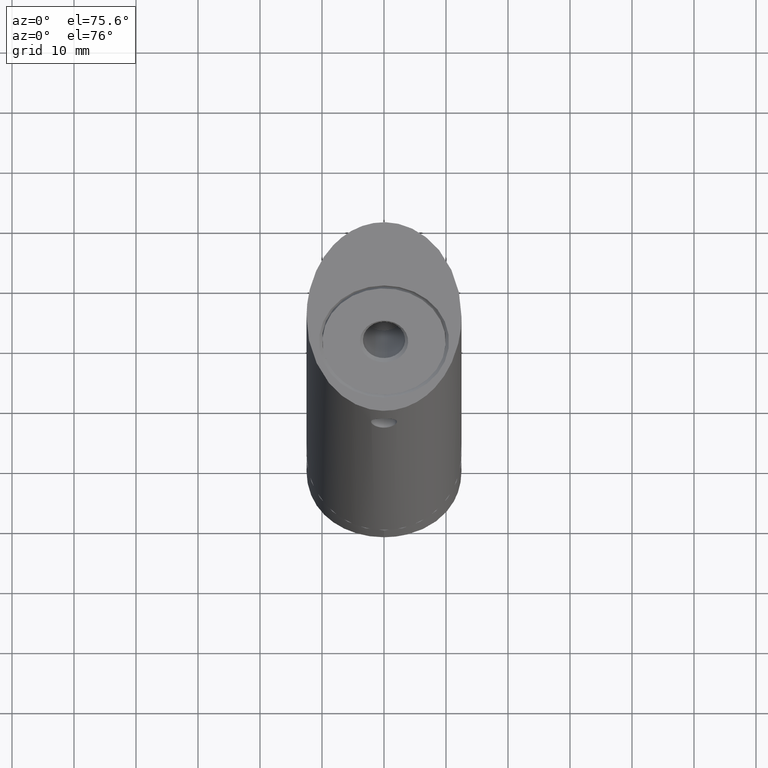
[diagram: clean part render]
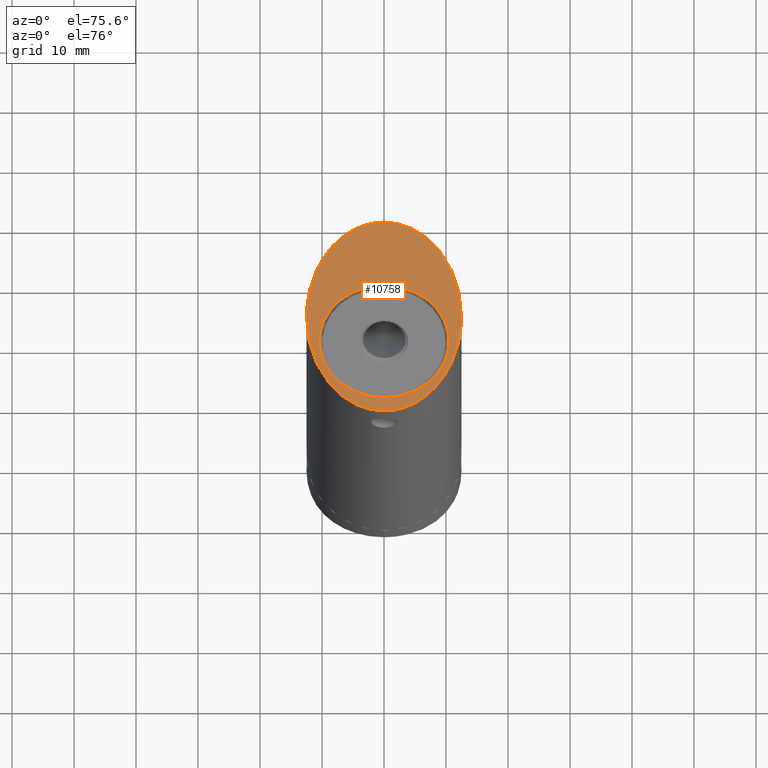
[diagram: same view with one face highlighted and labeled with its STEP entity id]
A machine part, auxiliary view. The second image highlights one B-rep face of the part: STEP entity #10758.
In plain terms, the highlighted planar face has unit normal (0, -0.7071, 0.7071).
Its self-contained STEP definition (entity closure, byte-faithful):
#552 = CARTESIAN_POINT ( 'NONE',  ( -12.50000000000000000, 0.0000000000000000000, 90.00000000000000000 ) ) ;
#835 =( BOUNDED_CURVE ( )  B_SPLINE_CURVE ( 3, ( #4357, #11078, #15218, #15042 ),
 .UNSPECIFIED., .F., .F. ) 
 B_SPLINE_CURVE_WITH_KNOTS ( ( 4, 4 ),
 ( 4.712388980384689700, 7.853981633974482800 ),
 .UNSPECIFIED. ) 
 CURVE ( )  GEOMETRIC_REPRESENTATION_ITEM ( )  RATIONAL_B_SPLINE_CURVE ( ( 1.000000000000000000, 0.3333333333333333700, 0.3333333333333333700, 1.000000000000000000 ) ) 
 REPRESENTATION_ITEM ( '' )  );
#949 = CIRCLE ( 'NONE', #10825, 10.49999999999988300 ) ;
#1698 = CIRCLE ( 'NONE', #12785, 10.49999999999988300 ) ;
#1745 = DIRECTION ( 'NONE',  ( -0.0000000000000000000, 0.7071067811865464600, -0.7071067811865486800 ) ) ;
#2478 = VERTEX_POINT ( 'NONE', #14538 ) ;
#2860 = PLANE ( 'NONE',  #9689 ) ;
#3027 = CARTESIAN_POINT ( 'NONE',  ( -12.50000000000000000, -45.00000000000000000, 45.00000000000013500 ) ) ;
#3293 = EDGE_CURVE ( 'NONE', #2478, #12637, #949, .T. ) ;
#4060 = ORIENTED_EDGE ( 'NONE', *, *, #11350, .T. ) ;
#4347 = DIRECTION ( 'NONE',  ( 0.0000000000000000000, -0.7071067811865485700, -0.7071067811865463500 ) ) ;
#4357 = CARTESIAN_POINT ( 'NONE',  ( -12.50000000000000000, 0.0000000000000000000, 90.00000000000000000 ) ) ;
#4732 = FACE_OUTER_BOUND ( 'NONE', #10887, .T. ) ;
#5400 = EDGE_CURVE ( 'NONE', #12987, #16969, #835, .T. ) ;
#7003 = CARTESIAN_POINT ( 'NONE',  ( 12.50000000000000000, 1.530808498934191500E-015, 90.00000000000000000 ) ) ;
#7118 = DIRECTION ( 'NONE',  ( 0.0000000000000000000, -0.7071067811865486800, -0.7071067811865464600 ) ) ;
#7611 = ORIENTED_EDGE ( 'NONE', *, *, #5400, .T. ) ;
#8516 = CARTESIAN_POINT ( 'NONE',  ( 12.50000000000000000, 1.530808498934191500E-015, 90.00000000000000000 ) ) ;
#8604 = CARTESIAN_POINT ( 'NONE',  ( -12.50000000000000000, 25.00000000000000000, 114.9999999999999100 ) ) ;
#9005 = ORIENTED_EDGE ( 'NONE', *, *, #3293, .T. ) ;
#9689 = AXIS2_PLACEMENT_3D ( 'NONE', #3027, #12536, #7118 ) ;
#10758 = ADVANCED_FACE ( 'NONE', ( #14597, #4732 ), #2860, .T. ) ;
#10825 = AXIS2_PLACEMENT_3D ( 'NONE', #16960, #1745, #11249 ) ;
#10887 = EDGE_LOOP ( 'NONE', ( #7611, #12817 ) ) ;
#11078 = CARTESIAN_POINT ( 'NONE',  ( -12.50000000000001100, -25.00000000000000000, 65.00000000000008500 ) ) ;
#11249 = DIRECTION ( 'NONE',  ( 0.0000000000000000000, -0.7071067811865485700, -0.7071067811865463500 ) ) ;
#11350 = EDGE_CURVE ( 'NONE', #12637, #2478, #1698, .T. ) ;
#11423 = CARTESIAN_POINT ( 'NONE',  ( 12.50000000000000000, 25.00000000000000000, 114.9999999999999100 ) ) ;
#11478 = CARTESIAN_POINT ( 'NONE',  ( -12.50000000000000000, 0.0000000000000000000, 90.00000000000000000 ) ) ;
#12340 = CARTESIAN_POINT ( 'NONE',  ( 0.0000000000000000000, -10.73223304703321400, 79.26776695296682400 ) ) ;
#12479 =( BOUNDED_CURVE ( )  B_SPLINE_CURVE ( 3, ( #7003, #11423, #8604, #11478 ),
 .UNSPECIFIED., .F., .T. ) 
 B_SPLINE_CURVE_WITH_KNOTS ( ( 4, 4 ),
 ( 1.570796326794896800, 4.712388980384689700 ),
 .UNSPECIFIED. ) 
 CURVE ( )  GEOMETRIC_REPRESENTATION_ITEM ( )  RATIONAL_B_SPLINE_CURVE ( ( 1.000000000000000000, 0.3333333333333333700, 0.3333333333333333700, 1.000000000000000000 ) ) 
 REPRESENTATION_ITEM ( '' )  );
#12536 = DIRECTION ( 'NONE',  ( 0.0000000000000000000, -0.7071067811865464600, 0.7071067811865486800 ) ) ;
#12624 = CARTESIAN_POINT ( 'NONE',  ( 0.0000000000000000000, -3.307611844574530400, 86.69238815542547600 ) ) ;
#12637 = VERTEX_POINT ( 'NONE', #12340 ) ;
#12785 = AXIS2_PLACEMENT_3D ( 'NONE', #12624, #14030, #4347 ) ;
#12817 = ORIENTED_EDGE ( 'NONE', *, *, #16690, .T. ) ;
#12987 = VERTEX_POINT ( 'NONE', #552 ) ;
#14030 = DIRECTION ( 'NONE',  ( -0.0000000000000000000, 0.7071067811865464600, -0.7071067811865486800 ) ) ;
#14538 = CARTESIAN_POINT ( 'NONE',  ( 1.285879139104730500E-015, 4.117009357884287000, 94.11700935788427100 ) ) ;
#14597 = FACE_BOUND ( 'NONE', #14859, .T. ) ;
#14859 = EDGE_LOOP ( 'NONE', ( #4060, #9005 ) ) ;
#15042 = CARTESIAN_POINT ( 'NONE',  ( 12.50000000000000000, 1.530808498934191500E-015, 90.00000000000000000 ) ) ;
#15218 = CARTESIAN_POINT ( 'NONE',  ( 12.50000000000000500, -25.00000000000000000, 65.00000000000008500 ) ) ;
#16690 = EDGE_CURVE ( 'NONE', #16969, #12987, #12479, .T. ) ;
#16960 = CARTESIAN_POINT ( 'NONE',  ( 0.0000000000000000000, -3.307611844574530400, 86.69238815542547600 ) ) ;
#16969 = VERTEX_POINT ( 'NONE', #8516 ) ;